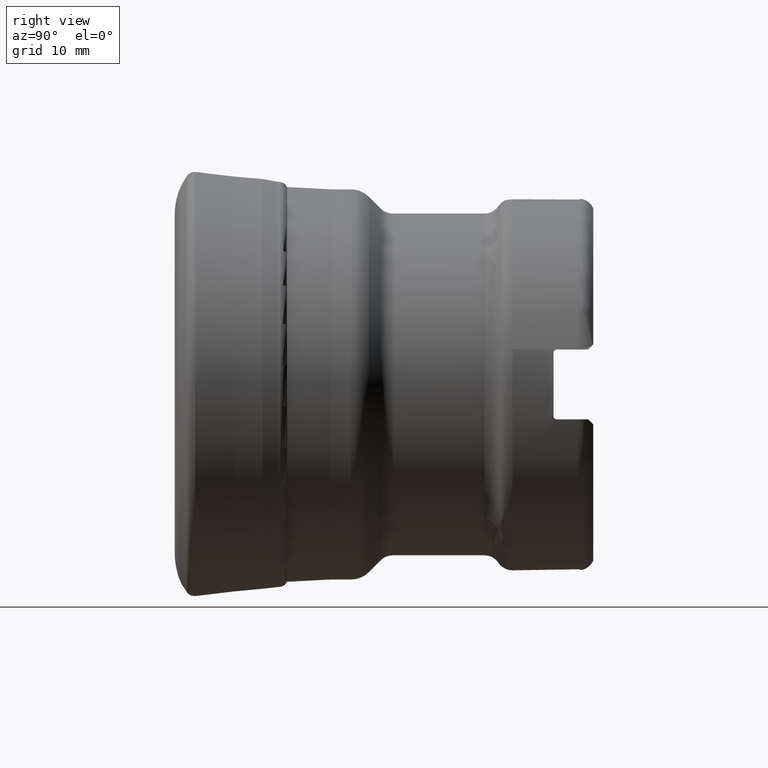
[diagram: clean part render]
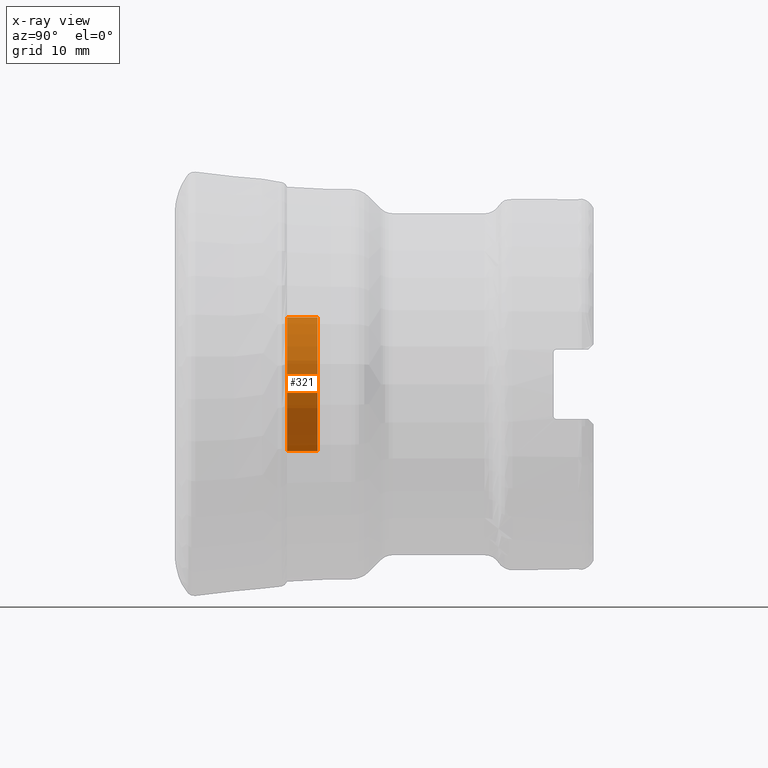
[diagram: x-ray — body ghosted, one internal face saturated and labeled with its STEP entity id]
A machine part, right view, then the same camera in x-ray: the body is ghosted and one INTERNAL B-rep face — a face not visible from any outside direction — is saturated and labeled: STEP entity #321.
In plain terms, the highlighted cylindrical surface (bore or boss wall) has radius 8 mm, axis along (0, -1, 0).
Its self-contained STEP definition (entity closure, byte-faithful):
#321=ADVANCED_FACE('',(#405,#406),#394,.F.);
#394=CYLINDRICAL_SURFACE('',#1129,8.);
#405=FACE_BOUND('',#503,.T.);
#406=FACE_BOUND('',#504,.T.);
#503=EDGE_LOOP('',(#625));
#504=EDGE_LOOP('',(#626));
#625=ORIENTED_EDGE('',*,*,#948,.T.);
#626=ORIENTED_EDGE('',*,*,#949,.T.);
#855=VERTEX_POINT('',#1518);
#856=VERTEX_POINT('',#1520);
#948=EDGE_CURVE('',#855,#855,#1063,.T.);
#949=EDGE_CURVE('',#856,#856,#1064,.T.);
#1063=CIRCLE('',#1127,8.);
#1064=CIRCLE('',#1128,8.);
#1127=AXIS2_PLACEMENT_3D('',#1517,#1240,#1241);
#1128=AXIS2_PLACEMENT_3D('',#1519,#1242,#1243);
#1129=AXIS2_PLACEMENT_3D('',#1521,#1244,#1245);
#1240=DIRECTION('',(0.,-1.,0.));
#1241=DIRECTION('',(0.,0.,1.));
#1242=DIRECTION('',(0.,1.,0.));
#1243=DIRECTION('',(0.,0.,1.));
#1244=DIRECTION('',(0.,-1.,0.));
#1245=DIRECTION('',(0.,0.,-1.));
#1517=CARTESIAN_POINT('',(0.,13.4077793459624,0.));
#1518=CARTESIAN_POINT('',(0.,13.4077793459624,8.));
#1519=CARTESIAN_POINT('',(0.,17.05,0.));
#1520=CARTESIAN_POINT('',(0.,17.05,8.));
#1521=CARTESIAN_POINT('',(0.,50.2,0.));